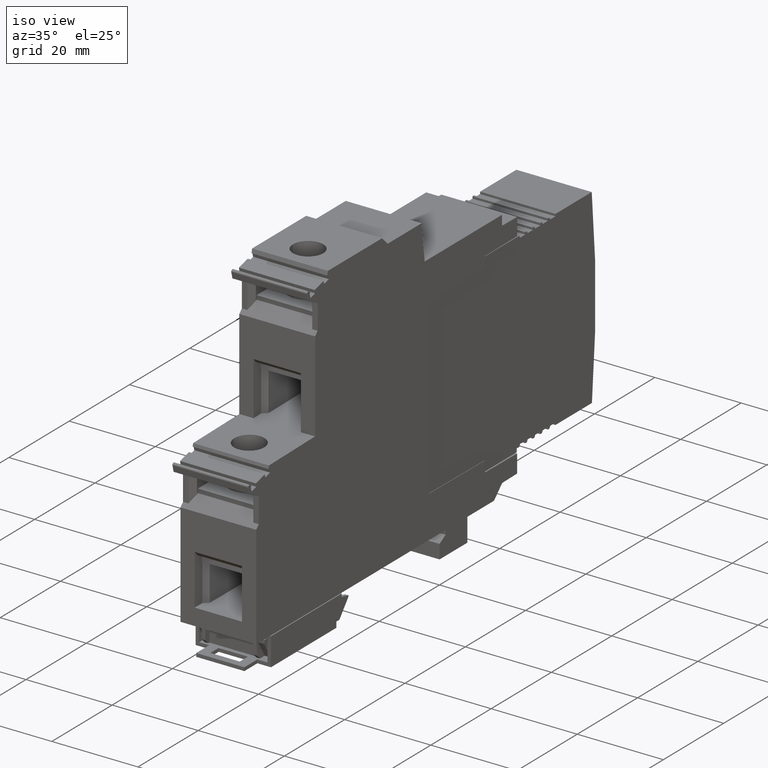
[diagram: clean part render]
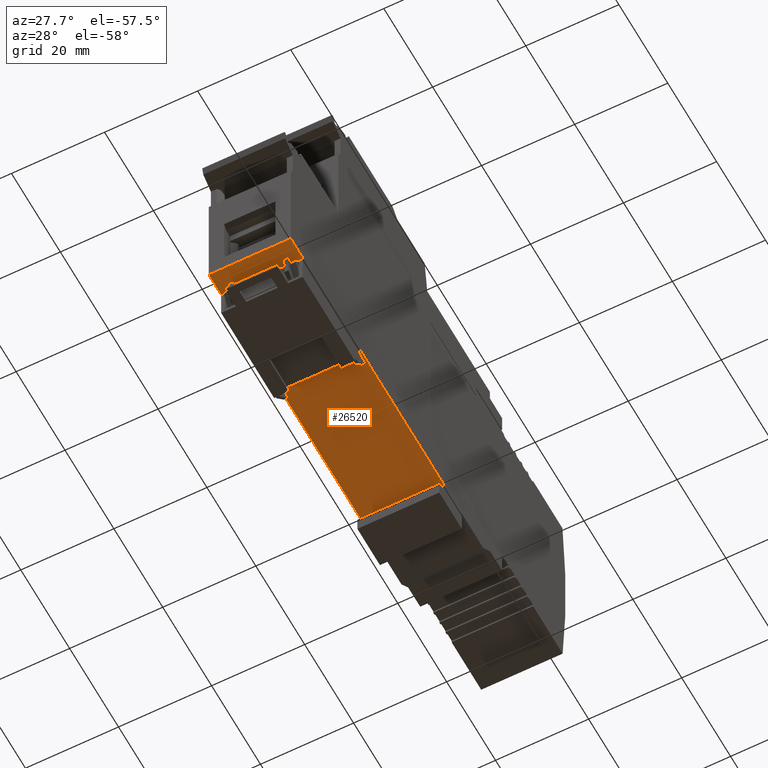
[diagram: tour spotlight — one face highlighted and labeled with its STEP entity id]
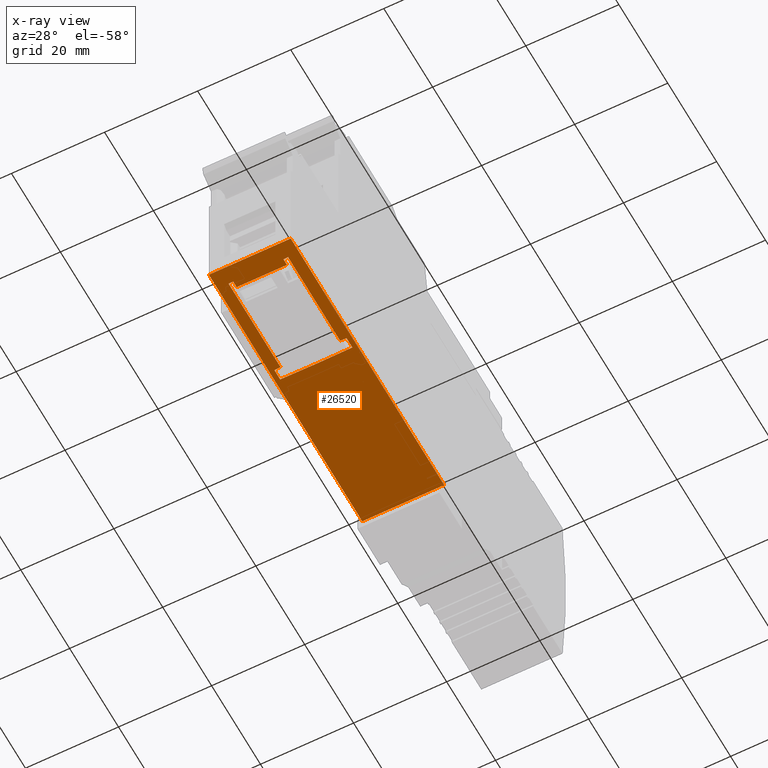
[diagram: x-ray of the same camera — body ghosted, this tour face saturated]
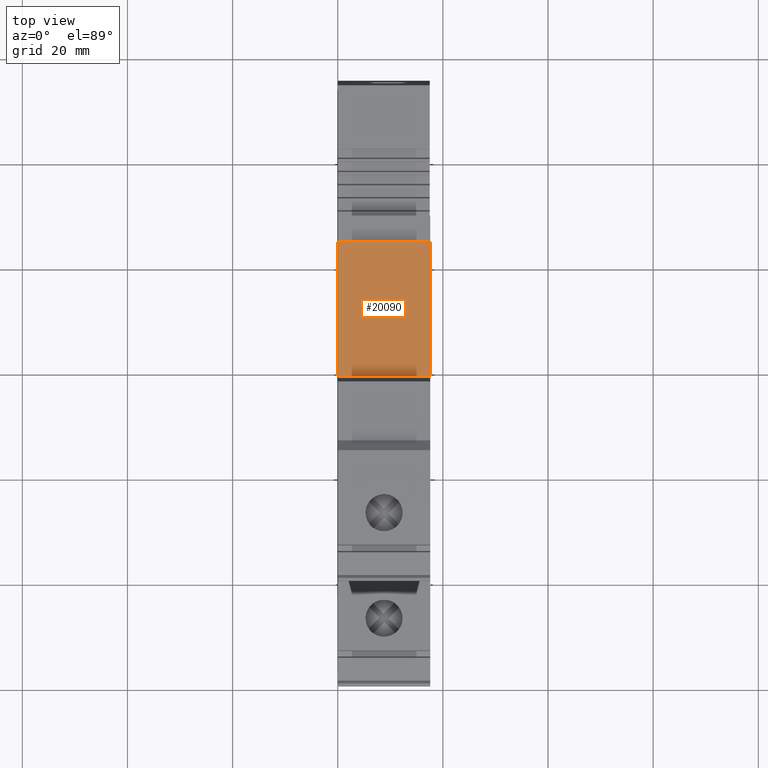
[diagram: tour spotlight — one face highlighted and labeled with its STEP entity id]
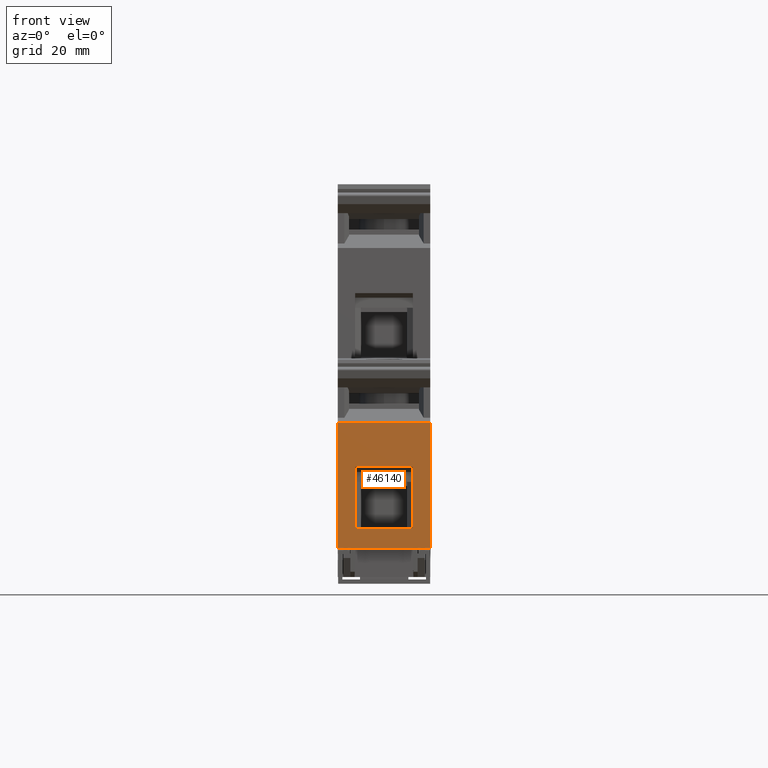
[diagram: tour spotlight — one face highlighted and labeled with its STEP entity id]
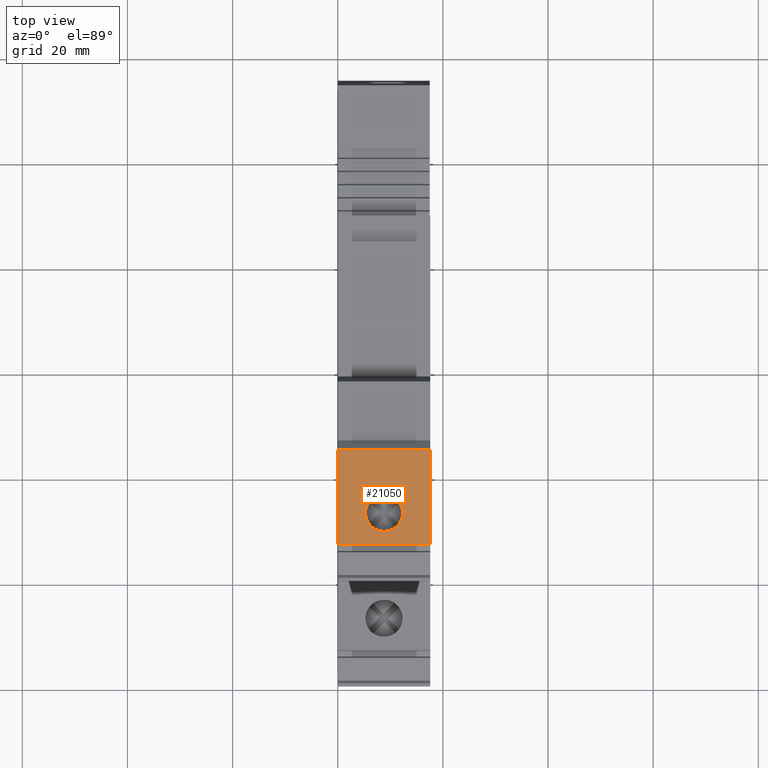
[diagram: tour spotlight — one face highlighted and labeled with its STEP entity id]
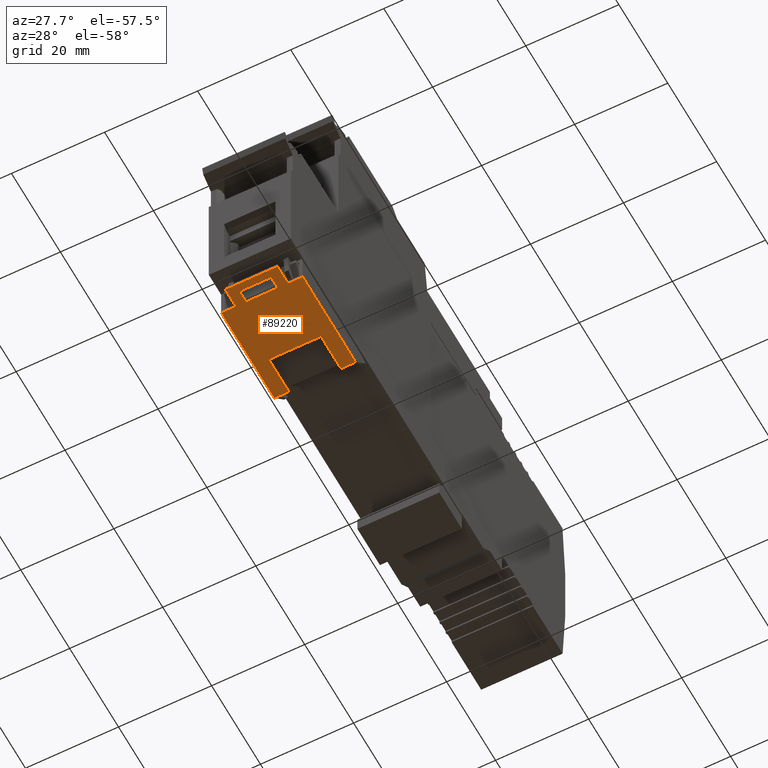
[diagram: tour spotlight — one face highlighted and labeled with its STEP entity id]
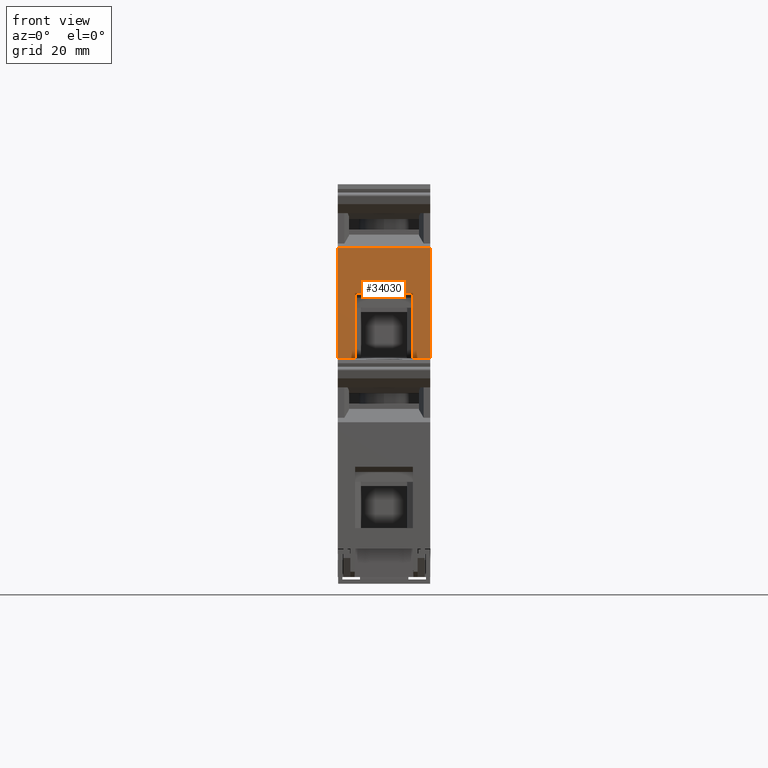
[diagram: tour spotlight — one face highlighted and labeled with its STEP entity id]
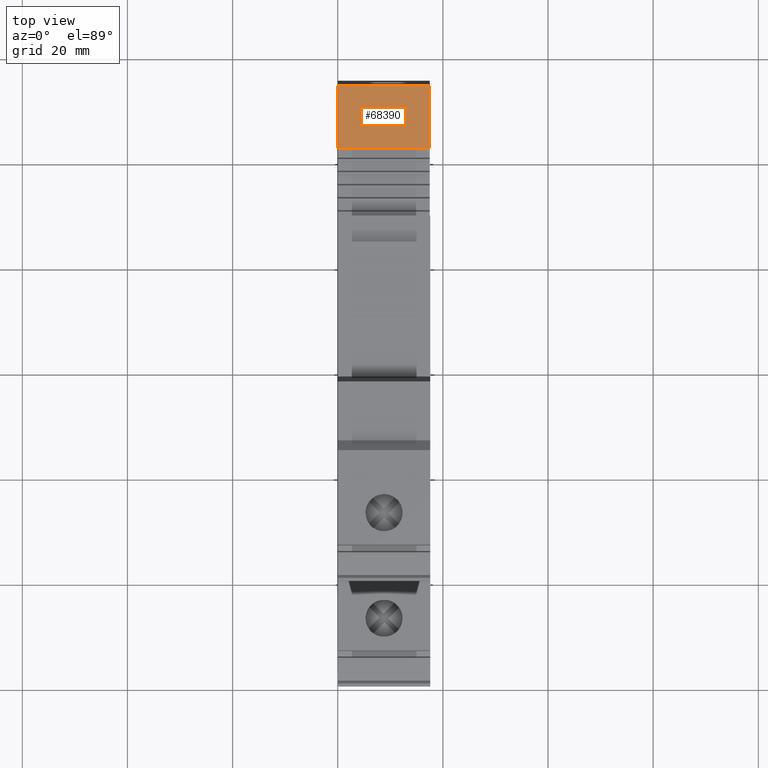
[diagram: tour spotlight — one face highlighted and labeled with its STEP entity id]
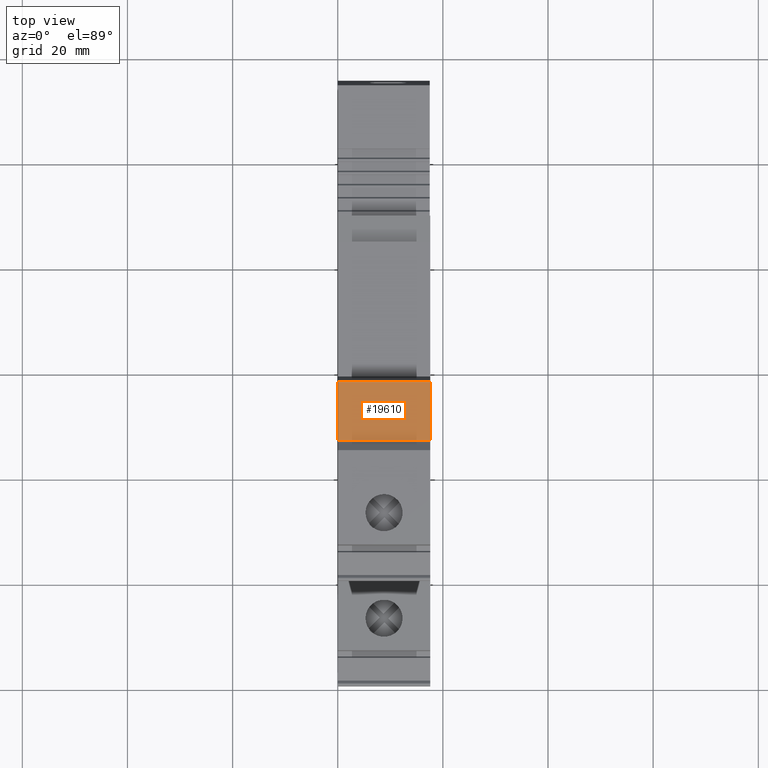
[diagram: tour spotlight — one face highlighted and labeled with its STEP entity id]
A machine part: a face-by-face anatomy tour. The part has 270 B-rep faces; the first image is the clean iso view, then the 8 largest visible faces are spotlighted one at a time (largest first), each with its STEP entity span.

Face 1 — auxiliary view, entity #26520. An x-ray twin of the same camera follows (body ghosted, this face saturated) — the face is partly hidden behind the body. In plain terms, the highlighted planar face has unit normal (-0, 0, 1).
Definition (entity closure, byte-faithful):
#7210=CARTESIAN_POINT('',(29.7804584000229,22.923372749623,
17.5999999999865));
#7220=DIRECTION('',(1.25004173678889E-14,-1.,6.05501983198117E-20));
#7230=VECTOR('',#7220,1.);
#7240=LINE('',#7210,#7230);
#7650=CARTESIAN_POINT('',(29.7804584000225,54.1326792958271,
17.5999999999704));
#7660=VERTEX_POINT('',#7650);
#7690=CARTESIAN_POINT('',(29.7804584000233,-8.66541060671706,
17.5999999999704));
#7700=VERTEX_POINT('',#7690);
#7710=EDGE_CURVE('',#7660,#7700,#7240,.T.);
#17580=CARTESIAN_POINT('',(29.7804584000233,-8.66541060671706,
1.6642805651331E-11));
#17590=VERTEX_POINT('',#17580);
#17620=CARTESIAN_POINT('',(29.7804584000229,22.923372749623,
2.92988411198072E-11));
#17630=DIRECTION('',(1.25004173678888E-14,-1.,1.13296184049846E-12));
#17640=VECTOR('',#17630,1.);
#17650=LINE('',#17620,#17640);
#17660=CARTESIAN_POINT('',(29.7804584000225,54.1326792958271,
1.6642805651331E-11));
#17670=VERTEX_POINT('',#17660);
#17680=EDGE_CURVE('',#17670,#17590,#17650,.T.);
#23860=CARTESIAN_POINT('',(29.7804584000233,-8.66541060671705,
-3.04022358727079E-11));
#23870=DIRECTION('',(-1.,-1.25004173678889E-14,-5.89811265967869E-17));
#23880=DIRECTION('',(1.25004173678889E-14,-1.,6.05501983198117E-20));
#23890=AXIS2_PLACEMENT_3D('',#23860,#23870,#23880);
#23900=PLANE('',#23890);
#25170=CARTESIAN_POINT('',(29.7804584000225,54.1326792958271,
-3.04022396751447E-11));
#25180=DIRECTION('',(5.89811265967869E-17,-4.15920219671222E-30,-1.));
#25190=VECTOR('',#25180,1.);
#25200=LINE('',#25170,#25190);
#25210=EDGE_CURVE('',#7660,#17670,#25200,.T.);
#25350=ORIENTED_EDGE('',*,*,#25210,.F.);
#25360=ORIENTED_EDGE('',*,*,#17680,.F.);
#25370=CARTESIAN_POINT('',(29.7804584000233,-8.66541060671706,
-3.04022358727079E-11));
#25380=DIRECTION('',(-5.89811265967869E-17,1.00724932385237E-30,1.));
#25390=VECTOR('',#25380,1.);
#25400=LINE('',#25370,#25390);
#25410=EDGE_CURVE('',#17590,#7700,#25400,.T.);
#25420=ORIENTED_EDGE('',*,*,#25410,.F.);
#25430=ORIENTED_EDGE('',*,*,#7710,.T.);
#25440=EDGE_LOOP('',(#25430,#25420,#25360,#25350));
#25450=FACE_OUTER_BOUND('',#25440,.T.);
#25460=CARTESIAN_POINT('',(29.7804584000232,0.,14.2027573139404));
#25470=DIRECTION('',(-1.25004173678889E-14,1.,1.16264493092959E-15));
#25480=VECTOR('',#25470,1.);
#25490=LINE('',#25460,#25480);
#25500=CARTESIAN_POINT('',(29.7804584000232,-5.17489282262394,
14.2027573139403));
#25510=VERTEX_POINT('',#25500);
#25520=CARTESIAN_POINT('',(29.7804584000232,-3.73142862263346,
14.2027573139403));
#25530=VERTEX_POINT('',#25520);
#25540=EDGE_CURVE('',#25510,#25530,#25490,.T.);
#25550=ORIENTED_EDGE('',*,*,#25540,.F.);
#25560=CARTESIAN_POINT('',(29.7804584000232,-3.73142862263346,0.));
#25570=DIRECTION('',(-5.89811265967869E-17,6.05501983190932E-20,1.));
#25580=VECTOR('',#25570,1.);
#25590=LINE('',#25560,#25580);
#25600=CARTESIAN_POINT('',(29.7804584000232,-3.73142862263346,
3.39724268599973));
#25610=VERTEX_POINT('',#25600);
#25620=EDGE_CURVE('',#25610,#25530,#25590,.T.);
#25630=ORIENTED_EDGE('',*,*,#25620,.T.);
#25640=CARTESIAN_POINT('',(29.7804584000232,0.,3.39724268599955));
#25650=DIRECTION('',(-1.25004173678889E-14,1.,-1.16264493092959E-15));
#25660=VECTOR('',#25650,1.);
#25670=LINE('',#25640,#25660);
#25680=CARTESIAN_POINT('',(29.7804584000232,-5.17489282262394,
3.39724268599973));
#25690=VERTEX_POINT('',#25680);
#25700=EDGE_CURVE('',#25690,#25610,#25670,.T.);
#25710=ORIENTED_EDGE('',*,*,#25700,.T.);
#25720=CARTESIAN_POINT('',(29.7804584000232,-5.17489282262408,0.));
#25730=DIRECTION('',(-5.89811265973151E-17,4.20218421396338E-14,1.));
#25740=VECTOR('',#25730,1.);
#25750=LINE('',#25720,#25740);
#25760=CARTESIAN_POINT('',(29.7804584000232,-5.17489282262416,
2.39999999902436));
#25770=VERTEX_POINT('',#25760);
#25780=EDGE_CURVE('',#25770,#25690,#25750,.T.);
#25790=ORIENTED_EDGE('',*,*,#25780,.T.);
#25800=CARTESIAN_POINT('',(29.7804584000232,0.,2.39999999902436));
#25810=DIRECTION('',(-1.25004173678889E-14,1.,-2.36658271566304E-30));
#25820=VECTOR('',#25810,1.);
#25830=LINE('',#25800,#25820);
#25840=CARTESIAN_POINT('',(29.780458400023,16.1300600752563,
2.39999999902436));
#25850=VERTEX_POINT('',#25840);
#25860=EDGE_CURVE('',#25770,#25850,#25830,.T.);
#25870=ORIENTED_EDGE('',*,*,#25860,.F.);
#25880=CARTESIAN_POINT('',(29.780458400023,16.1929062869968,0.));
#25890=DIRECTION('',(2.68882138776405E-16,-0.0261769483078732,
0.999657324975557));
#25900=VECTOR('',#25890,1.);
#25910=LINE('',#25880,#25900);
#25920=CARTESIAN_POINT('',(29.780458400023,16.1654110693774,
1.04999999892179));
#25930=VERTEX_POINT('',#25920);
#25940=EDGE_CURVE('',#25930,#25850,#25910,.T.);
#25950=ORIENTED_EDGE('',*,*,#25940,.T.);
#25960=CARTESIAN_POINT('',(29.7804584000232,0.,1.04999999892179));
#25970=DIRECTION('',(-1.25004173678889E-14,1.,-2.36658271566304E-30));
#25980=VECTOR('',#25970,1.);
#25990=LINE('',#25960,#25980);
#26000=CARTESIAN_POINT('',(29.7804584000229,18.5375742446903,
1.04999999892179));
#26010=VERTEX_POINT('',#26000);
#26020=EDGE_CURVE('',#25930,#26010,#25990,.T.);
#26030=ORIENTED_EDGE('',*,*,#26020,.F.);
#26040=CARTESIAN_POINT('',(29.7804584000229,18.5284110335194,0.));
#26050=DIRECTION('',(-1.6826817716975E-16,0.00872653549837374,
0.999961923064171));
#26060=VECTOR('',#26050,1.);
#26070=LINE('',#26040,#26060);
#26080=CARTESIAN_POINT('',(29.7804584000229,18.6052074700778,
8.79999999997003));
#26090=VERTEX_POINT('',#26080);
#26100=EDGE_CURVE('',#26010,#26090,#26070,.T.);
#26110=ORIENTED_EDGE('',*,*,#26100,.F.);
#26120=CARTESIAN_POINT('',(29.7804584000229,18.6820039066362,0.));
#26130=DIRECTION('',(-5.03069808033274E-17,0.00872653549837374,
-0.999961923064171));
#26140=VECTOR('',#26130,1.);
#26150=LINE('',#26120,#26140);
#26160=CARTESIAN_POINT('',(29.7804584000229,18.5375742446903,
16.5500000010179));
#26170=VERTEX_POINT('',#26160);
#26180=EDGE_CURVE('',#26170,#26090,#26150,.T.);
#26190=ORIENTED_EDGE('',*,*,#26180,.T.);
#26200=CARTESIAN_POINT('',(29.7804584000232,0.,16.5500000010179));
#26210=DIRECTION('',(-1.25004173678889E-14,1.,-2.36658271566304E-30));
#26220=VECTOR('',#26210,1.);
#26230=LINE('',#26200,#26220);
#26240=CARTESIAN_POINT('',(29.780458400023,16.1654110693774,
16.5500000010179));
#26250=VERTEX_POINT('',#26240);
#26260=EDGE_CURVE('',#26250,#26170,#26230,.T.);
#26270=ORIENTED_EDGE('',*,*,#26260,.T.);
#26280=CARTESIAN_POINT('',(29.780458400023,15.7320340673807,0.));
#26290=DIRECTION('',(3.86843335142828E-16,-0.0261769483078732,
-0.999657324975557));
#26300=VECTOR('',#26290,1.);
#26310=LINE('',#26280,#26300);
#26320=CARTESIAN_POINT('',(29.780458400023,16.1300600752563,
15.2000000009156));
#26330=VERTEX_POINT('',#26320);
#26340=EDGE_CURVE('',#26250,#26330,#26310,.T.);
#26350=ORIENTED_EDGE('',*,*,#26340,.F.);
#26360=CARTESIAN_POINT('',(29.7804584000232,0.,15.2000000009156));
#26370=DIRECTION('',(-1.25004173678889E-14,1.,-2.36658271566304E-30));
#26380=VECTOR('',#26370,1.);
#26390=LINE('',#26360,#26380);
#26400=CARTESIAN_POINT('',(29.7804584000232,-5.17489282262398,
15.2000000009156));
#26410=VERTEX_POINT('',#26400);
#26420=EDGE_CURVE('',#26410,#26330,#26390,.T.);
#26430=ORIENTED_EDGE('',*,*,#26420,.T.);
#26440=CARTESIAN_POINT('',(29.7804584000232,-5.17489282262335,0.));
#26450=DIRECTION('',(5.89811265962574E-17,4.20215998650245E-14,-1.));
#26460=VECTOR('',#26450,1.);
#26470=LINE('',#26440,#26460);
#26480=EDGE_CURVE('',#26410,#25510,#26470,.T.);
#26490=ORIENTED_EDGE('',*,*,#26480,.F.);
#26500=EDGE_LOOP('',(#26490,#26430,#26350,#26270,#26190,#26110,#26030,
#25950,#25870,#25790,#25710,#25630,#25550));
#26510=FACE_BOUND('',#26500,.T.);
#26520=ADVANCED_FACE('',(#25450,#26510),#23900,.F.);

Face 2 — top view, entity #20090. In plain terms, the highlighted planar face has unit normal (-0, 0, 1).
Definition (entity closure, byte-faithful):
#6230=CARTESIAN_POINT('',(-29.2142086338024,47.20572875058,
17.5999999999704));
#6240=VERTEX_POINT('',#6230);
#6270=CARTESIAN_POINT('',(-29.2142086338018,-0.149999993820334,
17.5999999999704));
#6280=DIRECTION('',(1.25004173678889E-14,-1.,1.74448326950165E-30));
#6290=VECTOR('',#6280,1.);
#6300=LINE('',#6270,#6290);
#6310=CARTESIAN_POINT('',(-29.2142086338028,72.8480893974729,
17.5999999999704));
#6320=VERTEX_POINT('',#6310);
#6330=EDGE_CURVE('',#6320,#6240,#6300,.T.);
#18960=CARTESIAN_POINT('',(-29.2142086338028,72.8480893974729,
1.6639121431712E-11));
#18970=VERTEX_POINT('',#18960);
#19000=CARTESIAN_POINT('',(-29.214208633802,21.8936170061286,
3.03168359159741E-11));
#19010=DIRECTION('',(-1.25004173678888E-14,1.,-1.13296184049846E-12));
#19020=VECTOR('',#19010,1.);
#19030=LINE('',#19000,#19020);
#19040=CARTESIAN_POINT('',(-29.2142086338152,47.20572875058,
1.66393112327733E-11));
#19050=VERTEX_POINT('',#19040);
#19060=EDGE_CURVE('',#19050,#18970,#19030,.T.);
#19750=CARTESIAN_POINT('',(-29.2142086338024,47.20572875058,
-3.04057188276413E-11));
#19760=DIRECTION('',(6.24500451351651E-17,-9.63675158860611E-31,-1.));
#19770=VECTOR('',#19760,1.);
#19780=LINE('',#19750,#19770);
#19790=EDGE_CURVE('',#6240,#19050,#19780,.T.);
#19930=CARTESIAN_POINT('',(-29.2142086338024,47.8728373384507,
16.8317641499274));
#19940=DIRECTION('',(-1.,-1.25004173678889E-14,-6.24500451351651E-17));
#19950=DIRECTION('',(-1.25004173678889E-14,1.,-1.74448326950165E-30));
#19960=AXIS2_PLACEMENT_3D('',#19930,#19940,#19950);
#19970=PLANE('',#19960);
#19980=ORIENTED_EDGE('',*,*,#19060,.F.);
#19990=CARTESIAN_POINT('',(-29.2142086338027,72.8480893974729,
17.8307609998884));
#20000=DIRECTION('',(6.24500451351651E-17,-9.63867751855049E-31,-1.));
#20010=VECTOR('',#20000,1.);
#20020=LINE('',#19990,#20010);
#20030=EDGE_CURVE('',#6320,#18970,#20020,.T.);
#20040=ORIENTED_EDGE('',*,*,#20030,.T.);
#20050=ORIENTED_EDGE('',*,*,#6330,.F.);
#20060=ORIENTED_EDGE('',*,*,#19790,.F.);
#20070=EDGE_LOOP('',(#20060,#20050,#20040,#19980));
#20080=FACE_OUTER_BOUND('',#20070,.T.);
#20090=ADVANCED_FACE('',(#20080),#19970,.T.);

Face 3 — front view, entity #46140. In plain terms, the highlighted planar face has unit normal (-0, 1, 0).
Definition (entity closure, byte-faithful):
#7690=CARTESIAN_POINT('',(29.7804584000233,-8.66541060671706,
17.5999999999704));
#7700=VERTEX_POINT('',#7690);
#7730=CARTESIAN_POINT('',(-1.65273038803167,-8.66541060671745,
17.5999999999704));
#7740=DIRECTION('',(1.,1.25038868148408E-14,6.24505735487405E-17));
#7750=VECTOR('',#7740,1.);
#7760=LINE('',#7730,#7750);
#7770=CARTESIAN_POINT('',(5.76148759322794,-8.66541060671737,
17.5999999999704));
#7780=VERTEX_POINT('',#7770);
#7790=EDGE_CURVE('',#7780,#7700,#7760,.T.);
#14080=CARTESIAN_POINT('',(5.76148759322794,-8.66541060671736,
1.66418504671819E-11));
#14090=VERTEX_POINT('',#14080);
#14670=CARTESIAN_POINT('',(5.76148759322794,-8.66541060671737,
-3.04036525386658E-11));
#14680=DIRECTION('',(5.8979916241223E-17,-1.00724932385237E-30,-1.));
#14690=VECTOR('',#14680,1.);
#14700=LINE('',#14670,#14690);
#14710=EDGE_CURVE('',#7780,#14090,#14700,.T.);
#17540=CARTESIAN_POINT('',(-28.6243628162095,-8.6654106067178,
-3.04061389471202E-11));
#17550=DIRECTION('',(1.,1.25038868148408E-14,5.89811265967868E-17));
#17560=VECTOR('',#17550,1.);
#17570=LINE('',#17540,#17560);
#17580=CARTESIAN_POINT('',(29.7804584000233,-8.66541060671706,
1.6642805651331E-11));
#17590=VERTEX_POINT('',#17580);
#17600=EDGE_CURVE('',#14090,#17590,#17570,.T.);
#25370=CARTESIAN_POINT('',(29.7804584000233,-8.66541060671706,
-3.04022358727079E-11));
#25380=DIRECTION('',(-5.89811265967869E-17,1.00724932385237E-30,1.));
#25390=VECTOR('',#25380,1.);
#25400=LINE('',#25370,#25390);
#25410=EDGE_CURVE('',#17590,#7700,#25400,.T.);
#45690=CARTESIAN_POINT('',(6.17570115560102,-8.66541060671736,
-5.00172746678268E-10));
#45700=DIRECTION('',(-1.25038868148408E-14,1.,-1.74472752088142E-30));
#45710=DIRECTION('',(-1.,-1.25038868148408E-14,-5.8979916241223E-17));
#45720=AXIS2_PLACEMENT_3D('',#45690,#45700,#45710);
#45730=PLANE('',#45720);
#45740=CARTESIAN_POINT('',(-28.6243628162095,-8.6654106067178,
3.29999999997157));
#45750=DIRECTION('',(1.,1.25038868148408E-14,5.8979916241223E-17));
#45760=VECTOR('',#45750,1.);
#45770=LINE('',#45740,#45760);
#45780=CARTESIAN_POINT('',(14.2266705270882,-8.66541060671726,
3.29999999997157));
#45790=VERTEX_POINT('',#45780);
#45800=CARTESIAN_POINT('',(25.9201621144345,-8.66541060671711,
3.29999999997157));
#45810=VERTEX_POINT('',#45800);
#45820=EDGE_CURVE('',#45790,#45810,#45770,.T.);
#45830=ORIENTED_EDGE('',*,*,#45820,.F.);
#45840=CARTESIAN_POINT('',(25.9201621144345,-8.66541060671704,
-0.387681406625009));
#45850=DIRECTION('',(-5.8979916241223E-17,1.00724932385237E-30,1.));
#45860=VECTOR('',#45850,1.);
#45870=LINE('',#45840,#45860);
#45880=CARTESIAN_POINT('',(25.9201621144345,-8.66541060671711,
14.2999999990281));
#45890=VERTEX_POINT('',#45880);
#45900=EDGE_CURVE('',#45810,#45890,#45870,.T.);
#45910=ORIENTED_EDGE('',*,*,#45900,.F.);
#45920=CARTESIAN_POINT('',(-28.6243628162095,-8.6654106067178,
14.2999999990281));
#45930=DIRECTION('',(1.,1.25038868148408E-14,5.8979916241223E-17));
#45940=VECTOR('',#45930,1.);
#45950=LINE('',#45920,#45940);
#45960=CARTESIAN_POINT('',(14.2266705270882,-8.66541060671726,
14.2999999990281));
#45970=VERTEX_POINT('',#45960);
#45980=EDGE_CURVE('',#45970,#45890,#45950,.T.);
#45990=ORIENTED_EDGE('',*,*,#45980,.T.);
#46000=CARTESIAN_POINT('',(14.2266705270882,-8.66541060671729,
0.000536643954590486));
#46010=DIRECTION('',(6.24500451351651E-17,-9.63687195922763E-31,-1.));
#46020=VECTOR('',#46010,1.);
#46030=LINE('',#46000,#46020);
#46040=EDGE_CURVE('',#45970,#45790,#46030,.T.);
#46050=ORIENTED_EDGE('',*,*,#46040,.F.);
#46060=EDGE_LOOP('',(#46050,#45990,#45910,#45830));
#46070=FACE_BOUND('',#46060,.T.);
#46080=ORIENTED_EDGE('',*,*,#7790,.F.);
#46090=ORIENTED_EDGE('',*,*,#25410,.T.);
#46100=ORIENTED_EDGE('',*,*,#17600,.T.);
#46110=ORIENTED_EDGE('',*,*,#14710,.T.);
#46120=EDGE_LOOP('',(#46110,#46100,#46090,#46080));
#46130=FACE_OUTER_BOUND('',#46120,.T.);
#46140=ADVANCED_FACE('',(#46070,#46130),#45730,.F.);

Face 4 — top view, entity #21050. In plain terms, the highlighted planar face has unit normal (-0, 0, 1).
Definition (entity closure, byte-faithful):
#6070=CARTESIAN_POINT('',(-39.5037624751252,33.0330606274227,
17.5999999999704));
#6080=VERTEX_POINT('',#6070);
#10510=CARTESIAN_POINT('',(-39.5037624751249,15.1035574072957,
17.5999999999704));
#10520=VERTEX_POINT('',#10510);
#10550=CARTESIAN_POINT('',(-39.503762475125,21.7140121757459,
17.5999999999704));
#10560=DIRECTION('',(-1.24969479209369E-14,1.,-6.05501983198115E-20));
#10570=VECTOR('',#10560,1.);
#10580=LINE('',#10550,#10570);
#10590=EDGE_CURVE('',#10520,#6080,#10580,.T.);
#14880=CARTESIAN_POINT('',(-39.5037624751259,91.0970283068417,
-3.04067866670042E-11));
#14890=DIRECTION('',(1.24969479209369E-14,-1.,6.05501983199407E-20));
#14900=VECTOR('',#14890,1.);
#14910=LINE('',#14880,#14900);
#14920=CARTESIAN_POINT('',(-39.5037624751252,33.0330606274227,
1.66384788486102E-11));
#14930=VERTEX_POINT('',#14920);
#14940=CARTESIAN_POINT('',(-39.503762475125,15.1035574072957,
1.66392508363457E-11));
#14950=VERTEX_POINT('',#14940);
#14960=EDGE_CURVE('',#14930,#14950,#14910,.T.);
#20520=CARTESIAN_POINT('',(-39.5037624751249,15.1035574072957,
-3.04063237733262E-11));
#20530=DIRECTION('',(-5.89811265967869E-17,3.01775715487108E-22,1.));
#20540=VECTOR('',#20530,1.);
#20550=LINE('',#20520,#20540);
#20560=EDGE_CURVE('',#14950,#10520,#20550,.T.);
#20700=CARTESIAN_POINT('',(-39.5037624751252,32.9295021834239,
-3.04067730618688E-11));
#20710=DIRECTION('',(-1.,-1.24969479209369E-14,-5.89811265967869E-17));
#20720=DIRECTION('',(-5.89811265967869E-17,6.05501983190744E-20,1.));
#20730=AXIS2_PLACEMENT_3D('',#20700,#20710,#20720);
#20740=PLANE('',#20730);
#20750=CARTESIAN_POINT('',(-39.503762475125,21.103847803947,
8.80053664442642));
#20760=DIRECTION('',(-1.,-1.24969479209369E-14,-5.89811265967869E-17));
#20770=DIRECTION('',(-1.24969479209369E-14,1.,-1.99235680045124E-16));
#20780=AXIS2_PLACEMENT_3D('',#20750,#20760,#20770);
#20790=ELLIPSE('',#20780,3.52924448962067,3.52870696859062);
#20800=CARTESIAN_POINT('',(-39.5037624751251,24.6330922935676,
8.80053664442642));
#20810=VERTEX_POINT('',#20800);
#20820=CARTESIAN_POINT('',(-39.503762475125,21.103847803947,
5.2718296758358));
#20830=VERTEX_POINT('',#20820);
#20840=EDGE_CURVE('',#20810,#20830,#20790,.T.);
#20850=ORIENTED_EDGE('',*,*,#20840,.F.);
#20860=CARTESIAN_POINT('',(-39.503762475125,21.103847803947,
12.329243613017));
#20870=VERTEX_POINT('',#20860);
#20880=EDGE_CURVE('',#20830,#20870,#20790,.T.);
#20890=ORIENTED_EDGE('',*,*,#20880,.F.);
#20900=EDGE_CURVE('',#20870,#20810,#20790,.T.);
#20910=ORIENTED_EDGE('',*,*,#20900,.F.);
#20920=EDGE_LOOP('',(#20910,#20890,#20850));
#20930=FACE_BOUND('',#20920,.T.);
#20940=ORIENTED_EDGE('',*,*,#20560,.T.);
#20950=ORIENTED_EDGE('',*,*,#14960,.T.);
#20960=CARTESIAN_POINT('',(-39.5037624751252,33.0330606274227,
-3.04063248589612E-11));
#20970=DIRECTION('',(-5.89811265967869E-17,6.05501983190744E-20,1.));
#20980=VECTOR('',#20970,1.);
#20990=LINE('',#20960,#20980);
#21000=EDGE_CURVE('',#14930,#6080,#20990,.T.);
#21010=ORIENTED_EDGE('',*,*,#21000,.F.);
#21020=ORIENTED_EDGE('',*,*,#10590,.T.);
#21030=EDGE_LOOP('',(#21020,#21010,#20950,#20940));
#21040=FACE_OUTER_BOUND('',#21030,.T.);
#21050=ADVANCED_FACE('',(#20930,#21040),#20740,.T.);

Face 5 — auxiliary view, entity #89220. In plain terms, the highlighted planar face has unit normal (0, -0, -1).
Definition (entity closure, byte-faithful):
#85110=CARTESIAN_POINT('',(36.4962375248759,-8.06164813659174,
3.23076099988843));
#85120=VERTEX_POINT('',#85110);
#85170=CARTESIAN_POINT('',(36.4962375248766,37.2383518634083,
3.23076099988843));
#85180=DIRECTION('',(1.59206534293698E-14,1.,3.03749006263974E-32));
#85190=VECTOR('',#85180,1.);
#85200=LINE('',#85170,#85190);
#85210=CARTESIAN_POINT('',(36.496237524876,-3.76164813659175,
3.23076099988843));
#85220=VERTEX_POINT('',#85210);
#85230=EDGE_CURVE('',#85120,#85220,#85200,.T.);
#85580=CARTESIAN_POINT('',(36.4962375248759,-8.06164813659174,
14.4307609998885));
#85590=VERTEX_POINT('',#85580);
#85640=CARTESIAN_POINT('',(36.4962375248759,-8.06164813659174,
8.8807609998884));
#85650=DIRECTION('',(-6.24500451351651E-17,9.63870624619065E-31,1.));
#85660=VECTOR('',#85650,1.);
#85670=LINE('',#85640,#85660);
#85680=EDGE_CURVE('',#85120,#85590,#85670,.T.);
#87580=CARTESIAN_POINT('',(36.496237524876,-3.76164813659175,
5.43076099988831));
#87590=VERTEX_POINT('',#87580);
#87620=CARTESIAN_POINT('',(36.4962375248755,37.2354939007011,
5.43076099988831));
#87630=DIRECTION('',(1.25010560010342E-14,-1.,1.74456213612088E-30));
#87640=VECTOR('',#87630,1.);
#87650=LINE('',#87620,#87640);
#87660=CARTESIAN_POINT('',(36.4962375248759,-6.46164813659183,
5.43076099988831));
#87670=VERTEX_POINT('',#87660);
#87680=EDGE_CURVE('',#87590,#87670,#87650,.T.);
#87910=CARTESIAN_POINT('',(36.496237524876,-3.76164813659175,
0.0807609998884011));
#87920=DIRECTION('',(6.24500451351651E-17,-9.63870624619065E-31,-1.));
#87930=VECTOR('',#87920,1.);
#87940=LINE('',#87910,#87930);
#87950=CARTESIAN_POINT('',(36.496237524876,-3.76164813659175,
12.2307609998884));
#87960=VERTEX_POINT('',#87950);
#87970=EDGE_CURVE('',#87960,#87590,#87940,.T.);
#88170=CARTESIAN_POINT('',(36.4962375248759,-8.06164813659187,
0.0807609998884367));
#88180=DIRECTION('',(1.,-1.59206534293698E-14,6.24500451351651E-17));
#88190=DIRECTION('',(6.24500451351651E-17,-9.63870624619065E-31,-1.));
#88200=AXIS2_PLACEMENT_3D('',#88170,#88180,#88190);
#88210=PLANE('',#88200);
#88220=CARTESIAN_POINT('',(36.4962375248755,37.2354939007011,
12.2307609998884));
#88230=DIRECTION('',(-1.25010560010342E-14,1.,-1.74456213612088E-30));
#88240=VECTOR('',#88230,1.);
#88250=LINE('',#88220,#88240);
#88260=CARTESIAN_POINT('',(36.4962375248759,-6.46164813659183,
12.2307609998884));
#88270=VERTEX_POINT('',#88260);
#88280=EDGE_CURVE('',#88270,#87960,#88250,.T.);
#88290=ORIENTED_EDGE('',*,*,#88280,.T.);
#88300=CARTESIAN_POINT('',(36.496237524876,-6.46164813659183,
0.0807609998884011));
#88310=DIRECTION('',(-6.24500451351651E-17,9.63870624619065E-31,1.));
#88320=VECTOR('',#88310,1.);
#88330=LINE('',#88300,#88320);
#88340=EDGE_CURVE('',#87670,#88270,#88330,.T.);
#88350=ORIENTED_EDGE('',*,*,#88340,.T.);
#88360=ORIENTED_EDGE('',*,*,#87680,.T.);
#88370=ORIENTED_EDGE('',*,*,#87970,.T.);
#88380=EDGE_LOOP('',(#88370,#88360,#88350,#88290));
#88390=FACE_BOUND('',#88380,.T.);
#88400=CARTESIAN_POINT('',(36.4962375248766,37.2383518634083,
3.23076099988843));
#88410=DIRECTION('',(-1.59206534293698E-14,-1.,-3.03749006263974E-32));
#88420=VECTOR('',#88410,1.);
#88430=LINE('',#88400,#88420);
#88440=CARTESIAN_POINT('',(36.4962375248763,17.9383518634082,
3.23076099988843));
#88450=VERTEX_POINT('',#88440);
#88460=CARTESIAN_POINT('',(36.4962375248762,9.7602559389998,
3.23076099988843));
#88470=VERTEX_POINT('',#88460);
#88480=EDGE_CURVE('',#88450,#88470,#88430,.T.);
#88490=ORIENTED_EDGE('',*,*,#88480,.T.);
#88500=CARTESIAN_POINT('',(36.4962375248763,17.9383518634082,
8.8807609998884));
#88510=DIRECTION('',(-6.24500451351651E-17,9.63870624619065E-31,1.));
#88520=VECTOR('',#88510,1.);
#88530=LINE('',#88500,#88520);
#88540=CARTESIAN_POINT('',(36.4962375248763,17.9383518634082,
0.0807609998884011));
#88550=VERTEX_POINT('',#88540);
#88560=EDGE_CURVE('',#88550,#88450,#88530,.T.);
#88570=ORIENTED_EDGE('',*,*,#88560,.T.);
#88580=CARTESIAN_POINT('',(36.4962375248766,37.2383518634083,
0.0807609998884011));
#88590=DIRECTION('',(1.59206534293698E-14,1.,3.03749006263974E-32));
#88600=VECTOR('',#88590,1.);
#88610=LINE('',#88580,#88600);
#88620=CARTESIAN_POINT('',(36.496237524876,-3.76164813659175,
0.0807609998884011));
#88630=VERTEX_POINT('',#88620);
#88640=EDGE_CURVE('',#88630,#88550,#88610,.T.);
#88650=ORIENTED_EDGE('',*,*,#88640,.T.);
#88660=CARTESIAN_POINT('',(36.496237524876,-3.76164813659175,
0.0807609998884011));
#88670=DIRECTION('',(6.24500451351651E-17,-9.63870624619065E-31,-1.));
#88680=VECTOR('',#88670,1.);
#88690=LINE('',#88660,#88680);
#88700=EDGE_CURVE('',#85220,#88630,#88690,.T.);
#88710=ORIENTED_EDGE('',*,*,#88700,.T.);
#88720=ORIENTED_EDGE('',*,*,#85230,.T.);
#88730=ORIENTED_EDGE('',*,*,#85680,.F.);
#88740=CARTESIAN_POINT('',(36.4962375248766,37.2383518634083,
14.4307609998863));
#88750=DIRECTION('',(-1.59206534293698E-14,-1.,4.94E-14));
#88760=VECTOR('',#88750,1.);
#88770=LINE('',#88740,#88760);
#88780=CARTESIAN_POINT('',(36.496237524876,-3.76164813659175,
14.4307609998883));
#88790=VERTEX_POINT('',#88780);
#88800=EDGE_CURVE('',#88790,#85590,#88770,.T.);
#88810=ORIENTED_EDGE('',*,*,#88800,.T.);
#88820=CARTESIAN_POINT('',(36.496237524876,-3.76164813659175,
0.0807609998884011));
#88830=DIRECTION('',(6.24500451351651E-17,-9.63870624619065E-31,-1.));
#88840=VECTOR('',#88830,1.);
#88850=LINE('',#88820,#88840);
#88860=CARTESIAN_POINT('',(36.496237524876,-3.76164813659175,
17.5807609998884));
#88870=VERTEX_POINT('',#88860);
#88880=EDGE_CURVE('',#88870,#88790,#88850,.T.);
#88890=ORIENTED_EDGE('',*,*,#88880,.T.);
#88900=CARTESIAN_POINT('',(36.4962375248766,37.2383518634083,
17.5807609998884));
#88910=DIRECTION('',(-1.59206534293698E-14,-1.,-3.03749006263974E-32));
#88920=VECTOR('',#88910,1.);
#88930=LINE('',#88900,#88920);
#88940=CARTESIAN_POINT('',(36.4962375248763,17.938351863403,
17.5807609998884));
#88950=VERTEX_POINT('',#88940);
#88960=EDGE_CURVE('',#88950,#88870,#88930,.T.);
#88970=ORIENTED_EDGE('',*,*,#88960,.T.);
#88980=CARTESIAN_POINT('',(36.4962375248763,17.938351863403,
8.8807609998884));
#88990=DIRECTION('',(6.24500451351651E-17,-9.63870624619065E-31,-1.));
#89000=VECTOR('',#88990,1.);
#89010=LINE('',#88980,#89000);
#89020=CARTESIAN_POINT('',(36.4962375248763,17.938351863403,
14.4307609998883));
#89030=VERTEX_POINT('',#89020);
#89040=EDGE_CURVE('',#88950,#89030,#89010,.T.);
#89050=ORIENTED_EDGE('',*,*,#89040,.F.);
#89060=CARTESIAN_POINT('',(36.4962375248766,37.2383518634083,
14.4307609998883));
#89070=DIRECTION('',(1.59206534293698E-14,1.,3.03749006263974E-32));
#89080=VECTOR('',#89070,1.);
#89090=LINE('',#89060,#89080);
#89100=CARTESIAN_POINT('',(36.4962375248762,9.7602559389998,
14.4307609998883));
#89110=VERTEX_POINT('',#89100);
#89120=EDGE_CURVE('',#89110,#89030,#89090,.T.);
#89130=ORIENTED_EDGE('',*,*,#89120,.T.);
#89140=CARTESIAN_POINT('',(36.4962375248762,9.7602559389998,
8.8807609998884));
#89150=DIRECTION('',(6.24500451351651E-17,-9.63870624619065E-31,-1.));
#89160=VECTOR('',#89150,1.);
#89170=LINE('',#89140,#89160);
#89180=EDGE_CURVE('',#89110,#88470,#89170,.T.);
#89190=ORIENTED_EDGE('',*,*,#89180,.F.);
#89200=EDGE_LOOP('',(#89190,#89130,#89050,#88970,#88890,#88810,#88730,
#88720,#88710,#88650,#88570,#88490));
#89210=FACE_OUTER_BOUND('',#89200,.T.);
#89220=ADVANCED_FACE('',(#88390,#89210),#88210,.T.);

Face 6 — front view, entity #34030. In plain terms, the highlighted planar face has unit normal (-0, 1, 0).
Definition (entity closure, byte-faithful):
#9140=CARTESIAN_POINT('',(-6.39301882384896,10.8414770358341,
17.5999999999704));
#9150=VERTEX_POINT('',#9140);
#9180=CARTESIAN_POINT('',(-1.99322437837998,10.8414770358342,
17.5999999999704));
#9190=DIRECTION('',(1.,1.25038868148408E-14,6.24505735487405E-17));
#9200=VECTOR('',#9190,1.);
#9210=LINE('',#9180,#9200);
#9220=CARTESIAN_POINT('',(-27.3831701582295,10.8414770358339,
17.5999999999704));
#9230=VERTEX_POINT('',#9220);
#9240=EDGE_CURVE('',#9230,#9150,#9210,.T.);
#11030=CARTESIAN_POINT('',(-6.39301882384896,10.8414770358341,
1.66405466160457E-11));
#11040=VERTEX_POINT('',#11030);
#11070=CARTESIAN_POINT('',(-6.39301882384897,10.8414770358341,
0.00053664395458927));
#11080=DIRECTION('',(-5.89719555765714E-17,1.00734562034959E-30,1.));
#11090=VECTOR('',#11080,1.);
#11100=LINE('',#11070,#11090);
#11110=CARTESIAN_POINT('',(-6.39301882384896,10.8414770358341,
3.30053664442633));
#11120=VERTEX_POINT('',#11110);
#11130=EDGE_CURVE('',#11040,#11120,#11100,.T.);
#11670=CARTESIAN_POINT('',(-6.39301882384896,10.8414770358341,
14.3005366434828));
#11680=VERTEX_POINT('',#11670);
#11710=CARTESIAN_POINT('',(-6.39301882384896,10.8414770358341,
-3.04043706062934E-11));
#11720=DIRECTION('',(-5.89719555765714E-17,1.00735765741174E-30,1.));
#11730=VECTOR('',#11720,1.);
#11740=LINE('',#11710,#11730);
#11750=EDGE_CURVE('',#11680,#9150,#11740,.T.);
#16230=CARTESIAN_POINT('',(-27.3831701582295,10.8414770358339,
1.66392357801475E-11));
#16240=VERTEX_POINT('',#16230);
#16270=CARTESIAN_POINT('',(-28.6243628162099,10.8414770358339,
-3.04061401282661E-11));
#16280=DIRECTION('',(1.,1.25038868148408E-14,5.89811265967868E-17));
#16290=VECTOR('',#16280,1.);
#16300=LINE('',#16270,#16290);
#16310=EDGE_CURVE('',#16240,#11040,#16300,.T.);
#33640=CARTESIAN_POINT('',(-26.9689565958564,10.8414770358339,
0.000536643954587612));
#33650=DIRECTION('',(-1.25038868148408E-14,1.,-1.74472752088142E-30));
#33660=DIRECTION('',(-1.,-1.25038868148408E-14,-5.8979916241223E-17));
#33670=AXIS2_PLACEMENT_3D('',#33640,#33650,#33660);
#33680=PLANE('',#33670);
#33690=ORIENTED_EDGE('',*,*,#9240,.F.);
#33700=ORIENTED_EDGE('',*,*,#11750,.T.);
#33710=CARTESIAN_POINT('',(-28.6243628162099,10.8414770358339,
14.3005366434828));
#33720=DIRECTION('',(1.,1.25038868148408E-14,5.8979916241223E-17));
#33730=VECTOR('',#33720,1.);
#33740=LINE('',#33710,#33730);
#33750=CARTESIAN_POINT('',(-18.7982917135072,10.841477035834,
14.3005366434828));
#33760=VERTEX_POINT('',#33750);
#33770=EDGE_CURVE('',#33760,#11680,#33740,.T.);
#33780=ORIENTED_EDGE('',*,*,#33770,.T.);
#33790=CARTESIAN_POINT('',(-18.7982917135072,10.841477035834,
0.000536643954588538));
#33800=DIRECTION('',(6.24500451351651E-17,-9.63687195922763E-31,-1.));
#33810=VECTOR('',#33800,1.);
#33820=LINE('',#33790,#33810);
#33830=CARTESIAN_POINT('',(-18.7982917135072,10.841477035834,
3.30053664442633));
#33840=VERTEX_POINT('',#33830);
#33850=EDGE_CURVE('',#33760,#33840,#33820,.T.);
#33860=ORIENTED_EDGE('',*,*,#33850,.F.);
#33870=CARTESIAN_POINT('',(-28.6243628162099,10.8414770358339,
3.30053664442633));
#33880=DIRECTION('',(1.,1.25038868148408E-14,5.8979916241223E-17));
#33890=VECTOR('',#33880,1.);
#33900=LINE('',#33870,#33890);
#33910=EDGE_CURVE('',#33840,#11120,#33900,.T.);
#33920=ORIENTED_EDGE('',*,*,#33910,.F.);
#33930=ORIENTED_EDGE('',*,*,#11130,.T.);
#33940=ORIENTED_EDGE('',*,*,#16310,.T.);
#33950=CARTESIAN_POINT('',(-27.3831701582295,10.8414770358339,
-3.04056086290665E-11));
#33960=DIRECTION('',(5.8979916241223E-17,-1.00724932385237E-30,-1.));
#33970=VECTOR('',#33960,1.);
#33980=LINE('',#33950,#33970);
#33990=EDGE_CURVE('',#9230,#16240,#33980,.T.);
#34000=ORIENTED_EDGE('',*,*,#33990,.T.);
#34010=EDGE_LOOP('',(#34000,#33940,#33930,#33920,#33860,#33780,#33700,
#33690));
#34020=FACE_OUTER_BOUND('',#34010,.T.);
#34030=ADVANCED_FACE('',(#34020),#33680,.F.);

Face 7 — top view, entity #68390. In plain terms, the highlighted planar face has unit normal (0, 0, -1).
Definition (entity closure, byte-faithful):
#2190=CARTESIAN_POINT('',(-22.5537624701207,90.7023329973845,
17.5006430606323));
#2200=VERTEX_POINT('',#2190);
#2230=CARTESIAN_POINT('',(-22.5537624701174,-0.0126563877434901,
17.5006430606323));
#2240=DIRECTION('',(3.67375126084027E-14,-1.,3.25812994516751E-30));
#2250=VECTOR('',#2240,1.);
#2260=LINE('',#2230,#2250);
#2270=CARTESIAN_POINT('',(-22.5537624701212,102.74397433105,
17.5006430606323));
#2280=VERTEX_POINT('',#2270);
#2290=EDGE_CURVE('',#2280,#2200,#2260,.T.);
#64090=CARTESIAN_POINT('',(-22.5537624701212,102.74397433105,
0.699999999999996));
#64100=DIRECTION('',(-5.52308764794106E-16,-1.78044571944912E-29,1.));
#64110=VECTOR('',#64100,1.);
#64120=LINE('',#64090,#64110);
#64130=CARTESIAN_POINT('',(-22.5537624701212,102.74397433105,
0.000643060632540937));
#64140=VERTEX_POINT('',#64130);
#64150=EDGE_CURVE('',#64140,#2280,#64120,.T.);
#68160=CARTESIAN_POINT('',(-22.5537624701212,102.74397433105,
0.699999999999996));
#68170=DIRECTION('',(1.,3.67375126084027E-14,5.52308764794106E-16));
#68180=DIRECTION('',(-3.67375126084027E-14,1.,-2.48599301586362E-30));
#68190=AXIS2_PLACEMENT_3D('',#68160,#68170,#68180);
#68200=PLANE('',#68190);
#68210=CARTESIAN_POINT('',(-22.5537624701208,90.7023329973845,
54.199999999997));
#68220=DIRECTION('',(-5.52308764794106E-16,-1.78244014848891E-29,1.));
#68230=VECTOR('',#68220,1.);
#68240=LINE('',#68210,#68230);
#68250=CARTESIAN_POINT('',(-22.5537624701207,90.7023329973845,
0.000643060632540937));
#68260=VERTEX_POINT('',#68250);
#68270=EDGE_CURVE('',#68260,#2200,#68240,.T.);
#68280=ORIENTED_EDGE('',*,*,#68270,.T.);
#68290=CARTESIAN_POINT('',(-22.5537624701174,-0.0126563877434901,
0.000643060632540937));
#68300=DIRECTION('',(-3.67375126084027E-14,1.,-3.25812994516751E-30));
#68310=VECTOR('',#68300,1.);
#68320=LINE('',#68290,#68310);
#68330=EDGE_CURVE('',#68260,#64140,#68320,.T.);
#68340=ORIENTED_EDGE('',*,*,#68330,.F.);
#68350=ORIENTED_EDGE('',*,*,#64150,.F.);
#68360=ORIENTED_EDGE('',*,*,#2290,.F.);
#68370=EDGE_LOOP('',(#68360,#68350,#68340,#68280));
#68380=FACE_OUTER_BOUND('',#68370,.T.);
#68390=ADVANCED_FACE('',(#68380),#68200,.F.);

Face 8 — top view, entity #19610. In plain terms, the highlighted planar face has unit normal (0, 0, -1).
Definition (entity closure, byte-faithful):
#6050=CARTESIAN_POINT('',(-37.6323880751252,34.9044350274227,
17.5999999999704));
#6060=VERTEX_POINT('',#6050);
#6110=CARTESIAN_POINT('',(-37.6323880751247,-0.149999993820433,
17.5999999999716));
#6120=DIRECTION('',(1.2642664692919E-14,-1.,6.05501983198202E-20));
#6130=VECTOR('',#6120,1.);
#6140=LINE('',#6110,#6130);
#6150=CARTESIAN_POINT('',(-37.6323880751253,46.1412761875195,
17.5999999999704));
#6160=VERTEX_POINT('',#6150);
#6170=EDGE_CURVE('',#6160,#6060,#6140,.T.);
#19120=CARTESIAN_POINT('',(-37.6323880751253,46.1412761875195,
1.66388402089467E-11));
#19130=VERTEX_POINT('',#19120);
#19160=CARTESIAN_POINT('',(-37.632388075125,21.7466771374029,
3.04620975691935E-11));
#19170=DIRECTION('',(1.26426646929189E-14,-1.,1.13296184049846E-12));
#19180=VECTOR('',#19170,1.);
#19190=LINE('',#19160,#19180);
#19200=CARTESIAN_POINT('',(-37.6323880751252,34.9044350274227,
1.6638595716026E-11));
#19210=VERTEX_POINT('',#19200);
#19220=EDGE_CURVE('',#19130,#19210,#19190,.T.);
#19400=CARTESIAN_POINT('',(-37.6323880751253,46.1412761875195,
-3.04062152768958E-11));
#19410=DIRECTION('',(1.,1.2642664692919E-14,5.89811265967869E-17));
#19420=DIRECTION('',(-1.2642664692919E-14,1.,-6.05501983198202E-20));
#19430=AXIS2_PLACEMENT_3D('',#19400,#19410,#19420);
#19440=PLANE('',#19430);
#19450=ORIENTED_EDGE('',*,*,#19220,.T.);
#19460=CARTESIAN_POINT('',(-37.6323880751253,46.1412761875195,
-3.04062152768958E-11));
#19470=DIRECTION('',(-5.89811265967869E-17,4.38633941574966E-19,1.));
#19480=VECTOR('',#19470,1.);
#19490=LINE('',#19460,#19480);
#19500=EDGE_CURVE('',#19130,#6160,#19490,.T.);
#19510=ORIENTED_EDGE('',*,*,#19500,.F.);
#19520=ORIENTED_EDGE('',*,*,#6170,.F.);
#19530=CARTESIAN_POINT('',(-37.6323880751252,34.9044350274227,
-3.04062145965029E-11));
#19540=DIRECTION('',(-5.89811265967869E-17,6.05501983190744E-20,1.));
#19550=VECTOR('',#19540,1.);
#19560=LINE('',#19530,#19550);
#19570=EDGE_CURVE('',#19210,#6060,#19560,.T.);
#19580=ORIENTED_EDGE('',*,*,#19570,.T.);
#19590=EDGE_LOOP('',(#19580,#19520,#19510,#19450));
#19600=FACE_OUTER_BOUND('',#19590,.T.);
#19610=ADVANCED_FACE('',(#19600),#19440,.F.);